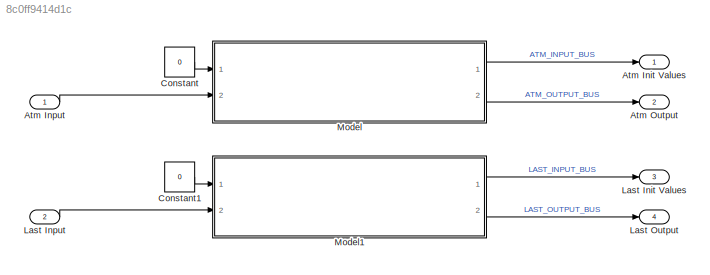
MODEL slx_8c0ff9414d1c
KIND model
BLOCK [Outport] Atm Init Values
  BusOutputAsStruct = on
  IconDisplay = Port number
  OutDataTypeStr = Bus: ATM_INPUT_BUS
BLOCK [Inport] Atm Input
  BusOutputAsStruct = on
  IconDisplay = Port number
  OutDataTypeStr = Bus: ATM_INPUT_BUS
BLOCK [Outport] Atm Output
  BusOutputAsStruct = on
  IconDisplay = Port number
  OutDataTypeStr = Bus: ATM_OUTPUT_BUS
  Port = 2
BLOCK [Constant] Constant
  OutDataTypeStr = boolean
  Value = 0
BLOCK [Constant] Constant1
  OutDataTypeStr = boolean
  Value = 0
BLOCK [Outport] Last Init Values
  BusOutputAsStruct = on
  IconDisplay = Port number
  OutDataTypeStr = Bus: LAST_OUTPUT_BUS
  Port = 3
BLOCK [Inport] Last Input
  BusOutputAsStruct = on
  IconDisplay = Port number
  OutDataTypeStr = Bus: LAST_INPUT_BUS
  Port = 2
BLOCK [Outport] Last Output
  BusOutputAsStruct = on
  IconDisplay = Port number
  OutDataTypeStr = Bus: LAST_INPUT_BUS
  Port = 4
BLOCK [ModelReference] Model
  CopyOfModelName = AtmNull
  DefaultDataLogging = on
  ModelNameDialog = AtmNull
  ModelReferenceVersion = 1.19
  Ports = [2, 2]
  Variant = on
BLOCK [ModelReference] Model1
  CopyOfModelName = LastNull
  DefaultDataLogging = on
  ModelNameDialog = LastNull
  ModelReferenceVersion = 1.22
  Ports = [2, 2]
  Variant = on
LINE Atm Input:1 -> Model:2
LINE Constant1:1 -> Model1:1
LINE Constant:1 -> Model:1
LINE Last Input:1 -> Model1:2
LINE Model1:1 -> Last Init Values:1
LINE Model1:2 -> Last Output:1
LINE Model:1 -> Atm Init Values:1
LINE Model:2 -> Atm Output:1
